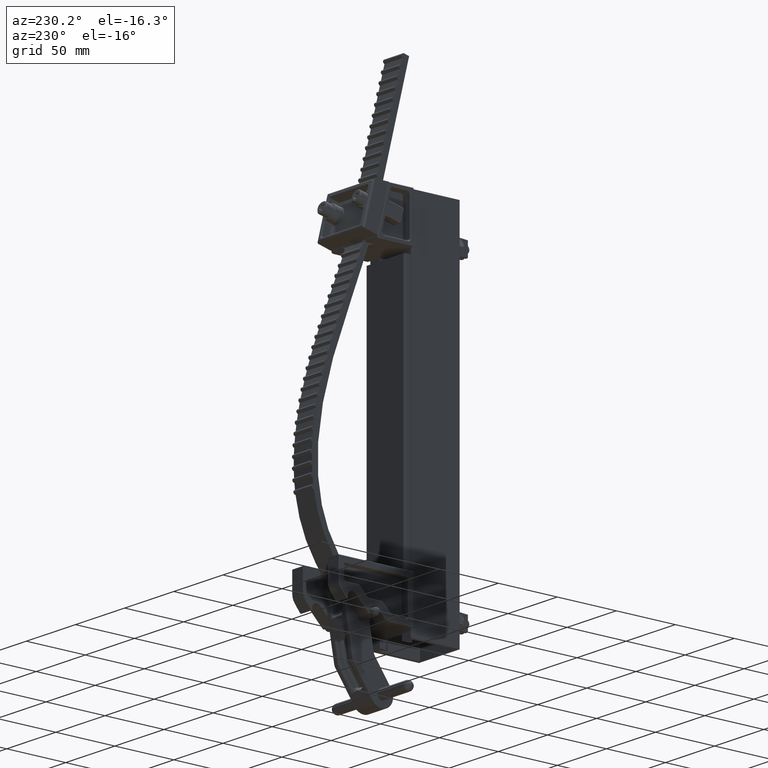
[diagram: clean part render]
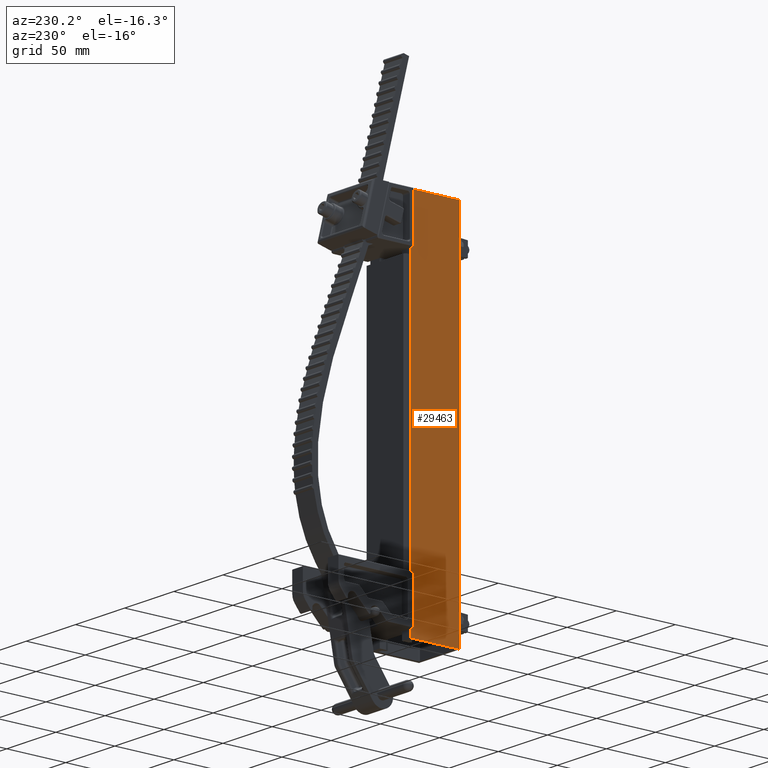
[diagram: same view with one face highlighted and labeled with its STEP entity id]
A machine part, auxiliary view. The second image highlights one B-rep face of the part: STEP entity #29463.
In plain terms, the highlighted planar face has unit normal (-1, 0, 0).
Its self-contained STEP definition (entity closure, byte-faithful):
#3077 = PLANE ( 'NONE',  #19112 ) ;
#4196 = EDGE_CURVE ( 'NONE', #23777, #21362, #13094, .T. ) ;
#4228 = VERTEX_POINT ( 'NONE', #9597 ) ;
#4633 = ORIENTED_EDGE ( 'NONE', *, *, #4196, .T. ) ;
#6640 = CARTESIAN_POINT ( 'NONE',  ( -0.8125000000000000000, 0.0000000000000000000, 6.000000000000000900 ) ) ;
#7893 = EDGE_CURVE ( 'NONE', #21362, #10840, #43210, .T. ) ;
#8100 = LINE ( 'NONE', #6640, #42820 ) ;
#8883 = CARTESIAN_POINT ( 'NONE',  ( -0.8125000000000000000, 1.625000000000000200, 6.000000000000000900 ) ) ;
#9597 = CARTESIAN_POINT ( 'NONE',  ( -0.8125000000000000000, 0.0000000000000000000, -6.000000000000000900 ) ) ;
#9810 = ORIENTED_EDGE ( 'NONE', *, *, #12478, .F. ) ;
#10743 = ORIENTED_EDGE ( 'NONE', *, *, #7893, .T. ) ;
#10840 = VERTEX_POINT ( 'NONE', #27355 ) ;
#12404 = FACE_OUTER_BOUND ( 'NONE', #17608, .T. ) ;
#12478 = EDGE_CURVE ( 'NONE', #4228, #10840, #18359, .T. ) ;
#12920 = CARTESIAN_POINT ( 'NONE',  ( -0.8125000000000000000, 0.0000000000000000000, 6.000000000000000900 ) ) ;
#13094 = LINE ( 'NONE', #12920, #39680 ) ;
#13525 = DIRECTION ( 'NONE',  ( 0.0000000000000000000, 0.0000000000000000000, 1.000000000000000000 ) ) ;
#15869 = DIRECTION ( 'NONE',  ( -0.0000000000000000000, -0.0000000000000000000, -1.000000000000000000 ) ) ;
#17608 = EDGE_LOOP ( 'NONE', ( #9810, #18441, #4633, #10743 ) ) ;
#18359 = LINE ( 'NONE', #33521, #42741 ) ;
#18441 = ORIENTED_EDGE ( 'NONE', *, *, #24847, .F. ) ;
#19112 = AXIS2_PLACEMENT_3D ( 'NONE', #20368, #34282, #13525 ) ;
#20368 = CARTESIAN_POINT ( 'NONE',  ( -0.8125000000000000000, 0.0000000000000000000, 6.000000000000000900 ) ) ;
#21362 = VERTEX_POINT ( 'NONE', #43589 ) ;
#23285 = DIRECTION ( 'NONE',  ( 0.0000000000000000000, 1.000000000000000000, 0.0000000000000000000 ) ) ;
#23777 = VERTEX_POINT ( 'NONE', #24064 ) ;
#24064 = CARTESIAN_POINT ( 'NONE',  ( -0.8125000000000000000, 0.0000000000000000000, 6.000000000000000900 ) ) ;
#24847 = EDGE_CURVE ( 'NONE', #23777, #4228, #8100, .T. ) ;
#27355 = CARTESIAN_POINT ( 'NONE',  ( -0.8125000000000000000, 1.625000000000000200, -6.000000000000000900 ) ) ;
#29463 = ADVANCED_FACE ( 'NONE', ( #12404 ), #3077, .T. ) ;
#33521 = CARTESIAN_POINT ( 'NONE',  ( -0.8125000000000000000, 0.0000000000000000000, -6.000000000000000900 ) ) ;
#33996 = VECTOR ( 'NONE', #15869, 39.37007874015748100 ) ;
#34239 = DIRECTION ( 'NONE',  ( -0.0000000000000000000, -0.0000000000000000000, -1.000000000000000000 ) ) ;
#34282 = DIRECTION ( 'NONE',  ( -1.000000000000000000, 0.0000000000000000000, 0.0000000000000000000 ) ) ;
#39680 = VECTOR ( 'NONE', #23285, 39.37007874015748100 ) ;
#42741 = VECTOR ( 'NONE', #43979, 39.37007874015748100 ) ;
#42820 = VECTOR ( 'NONE', #34239, 39.37007874015748100 ) ;
#43210 = LINE ( 'NONE', #8883, #33996 ) ;
#43589 = CARTESIAN_POINT ( 'NONE',  ( -0.8125000000000000000, 1.625000000000000200, 6.000000000000000900 ) ) ;
#43979 = DIRECTION ( 'NONE',  ( 0.0000000000000000000, 1.000000000000000000, 0.0000000000000000000 ) ) ;